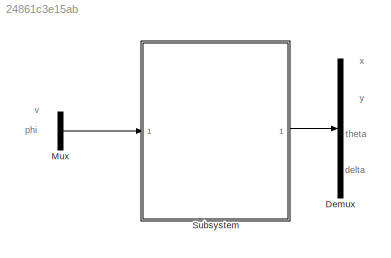
MODEL slx_24861c3e15ab
KIND model
BLOCK [Demux] Demux
  DisplayOption = bar
  Ports = [1, 4]
BLOCK [Mux] Mux
  DisplayOption = bar
  Inputs = 2
  Ports = [2, 1]
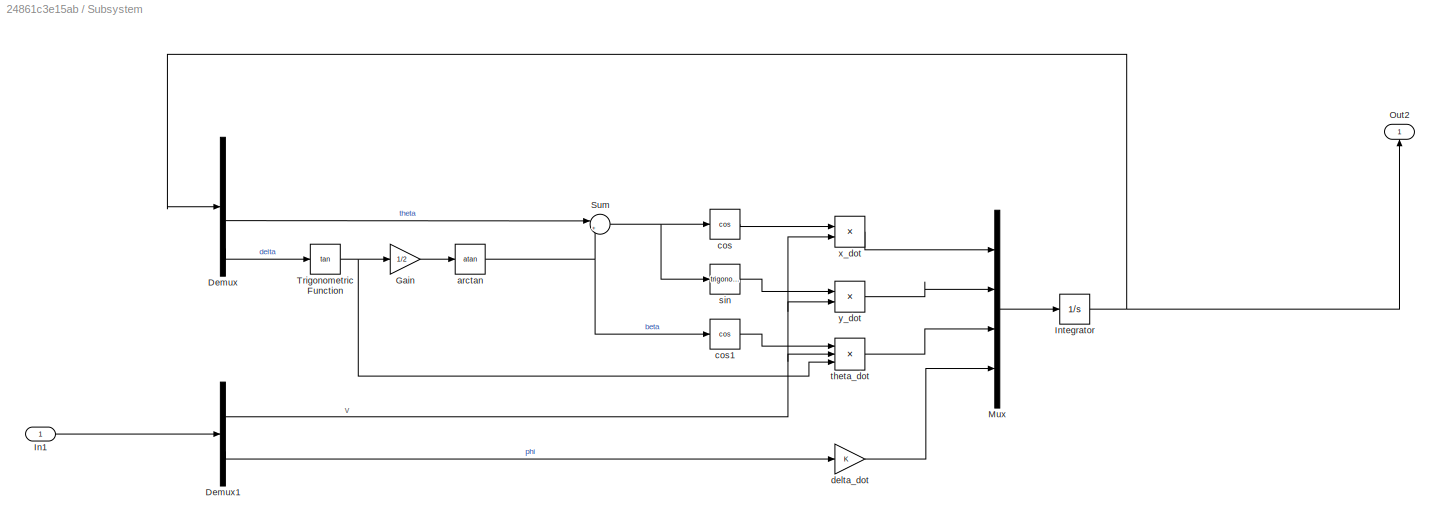
BLOCK [SubSystem] Subsystem
  Ports = [1, 1]
  RequestExecContextInheritance = off
BLOCK [Demux] Subsystem/Demux
  DisplayOption = bar
  Ports = [1, 4]
BLOCK [Demux] Subsystem/Demux1
  DisplayOption = bar
  Outputs = 2
  Ports = [1, 2]
BLOCK [Gain] Subsystem/Gain
  Gain = 1/2
  OutDataTypeStr = Inherit: Inherit via internal rule
  ParamDataTypeStr = Inherit: Inherit via internal rule
  SaturateOnIntegerOverflow = off
BLOCK [Inport] Subsystem/In1
  IconDisplay = Port number
BLOCK [Integrator] Subsystem/Integrator
  InitialCondition = [0 0 0 0]
  Ports = [1, 1]
BLOCK [Mux] Subsystem/Mux
  DisplayOption = bar
  Ports = [4, 1]
BLOCK [Outport] Subsystem/Out2
  IconDisplay = Port number
BLOCK [Sum] Subsystem/Sum
  IconShape = round
  InputSameDT = off
  Inputs = |++
  OutDataTypeStr = Inherit: Inherit via internal rule
  Ports = [2, 1]
  SaturateOnIntegerOverflow = off
BLOCK [Trigonometry] Subsystem/Trigonometric Function
  Operator = tan
  Ports = [1, 1]
BLOCK [Trigonometry] Subsystem/arctan 
  Operator = atan
  Ports = [1, 1]
BLOCK [Trigonometry] Subsystem/cos
  Operator = cos
  Ports = [1, 1]
BLOCK [Trigonometry] Subsystem/cos1
  Operator = cos
  Ports = [1, 1]
BLOCK [Gain] Subsystem/delta_dot
  OutDataTypeStr = Inherit: Inherit via internal rule
  ParamDataTypeStr = Inherit: Inherit via internal rule
  SaturateOnIntegerOverflow = off
BLOCK [Trigonometry] Subsystem/sin 
  Ports = [1, 1]
BLOCK [Product] Subsystem/theta_dot
  InputSameDT = off
  Inputs = 3
  OutDataTypeStr = Inherit: Inherit via internal rule
  Ports = [3, 1]
  RndMeth = Floor
  SaturateOnIntegerOverflow = off
BLOCK [Product] Subsystem/x_dot
  InputSameDT = off
  OutDataTypeStr = Inherit: Inherit via internal rule
  Ports = [2, 1]
  RndMeth = Floor
  SaturateOnIntegerOverflow = off
BLOCK [Product] Subsystem/y_dot
  InputSameDT = off
  OutDataTypeStr = Inherit: Inherit via internal rule
  Ports = [2, 1]
  RndMeth = Floor
  SaturateOnIntegerOverflow = off
ANNOTATION (root): delta
ANNOTATION (root): phi
ANNOTATION (root): theta
ANNOTATION (root): v
ANNOTATION (root): x
ANNOTATION (root): y
ANNOTATION Subsystem: v
LINE Mux:1 -> Subsystem:1
NET Subsystem/Demux1:1 -> Subsystem/theta_dot:2, Subsystem/x_dot:2, Subsystem/y_dot:2
LINE Subsystem/Demux1:2 -> Subsystem/delta_dot:1
LINE Subsystem/Demux:3 -> Subsystem/Sum:1
LINE Subsystem/Demux:4 -> Subsystem/Trigonometric Function:1
LINE Subsystem/Gain:1 -> Subsystem/arctan :1
LINE Subsystem/In1:1 -> Subsystem/Demux1:1
NET Subsystem/Integrator:1 -> Subsystem/Demux:1, Subsystem/Out2:1
LINE Subsystem/Mux:1 -> Subsystem/Integrator:1
NET Subsystem/Sum:1 -> Subsystem/cos:1, Subsystem/sin :1
NET Subsystem/Trigonometric Function:1 -> Subsystem/Gain:1, Subsystem/theta_dot:3
NET Subsystem/arctan :1 -> Subsystem/Sum:2, Subsystem/cos1:1
LINE Subsystem/cos1:1 -> Subsystem/theta_dot:1
LINE Subsystem/cos:1 -> Subsystem/x_dot:1
LINE Subsystem/delta_dot:1 -> Subsystem/Mux:4
LINE Subsystem/sin :1 -> Subsystem/y_dot:1
LINE Subsystem/theta_dot:1 -> Subsystem/Mux:3
LINE Subsystem/x_dot:1 -> Subsystem/Mux:1
LINE Subsystem/y_dot:1 -> Subsystem/Mux:2
LINE Subsystem:1 -> Demux:1
note: NET lines group one-source signal fan-out (src -> all destinations, sorted); 1:1 wires keep LINE
